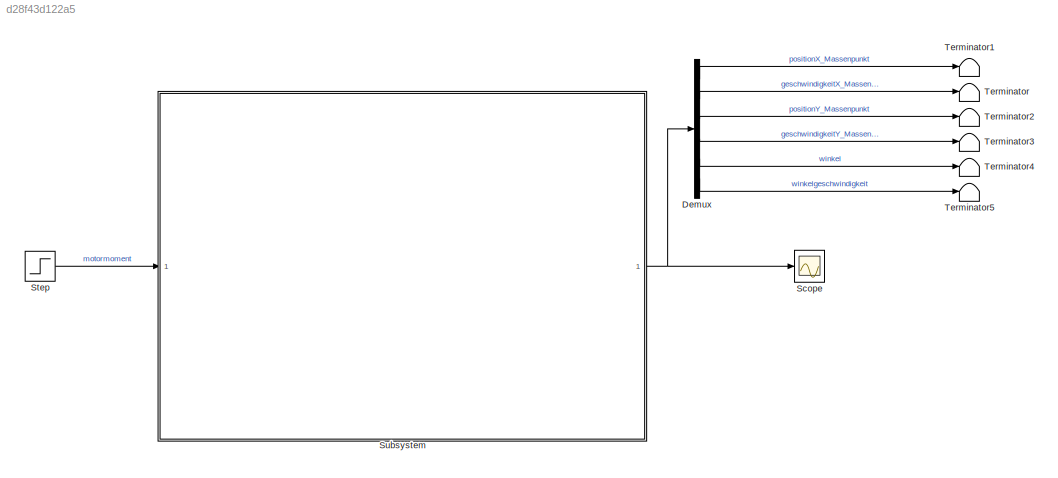
MODEL slx_d28f43d122a5
KIND model
CONFIG AbsTol = auto
CONFIG EnableMultiTasking = off
CONFIG FixedStep = auto
CONFIG MaxStep = auto
CONFIG MinStep = auto
CONFIG RelTol = 1e-3
CONFIG SampleTimeConstraint = Unconstrained
CONFIG SolverName = VariableStepAuto
CONFIG StartTime = 0.0
CONFIG StopTime = 9
BLOCK [Demux] Demux
  Outputs = 6
  Ports = [1, 6]
BLOCK [Scope] Scope
  Floating = off
  NumInputPorts = 1
  Ports = [1]
  ScopeSpecificationString = Simulink.scopes.TimeScopeBlockCfg('CurrentConfiguration', extmgr.ConfigurationSet(extmgr.Configuration('Core','General UI',true),extmgr.Configuration('Core','Source UI',true),extmgr.Configuration('Sources','WiredSimulink',true,'DataLoggingVariableName','ScopeData13'),extmgr.Configuration('Visuals','Time Domain',true),extmgr.Configuration('Tools','Plot Navigation',true),extmgr.Configuration('Tools'...<+41ch>
BLOCK [Step] Step
  SampleTime = 0
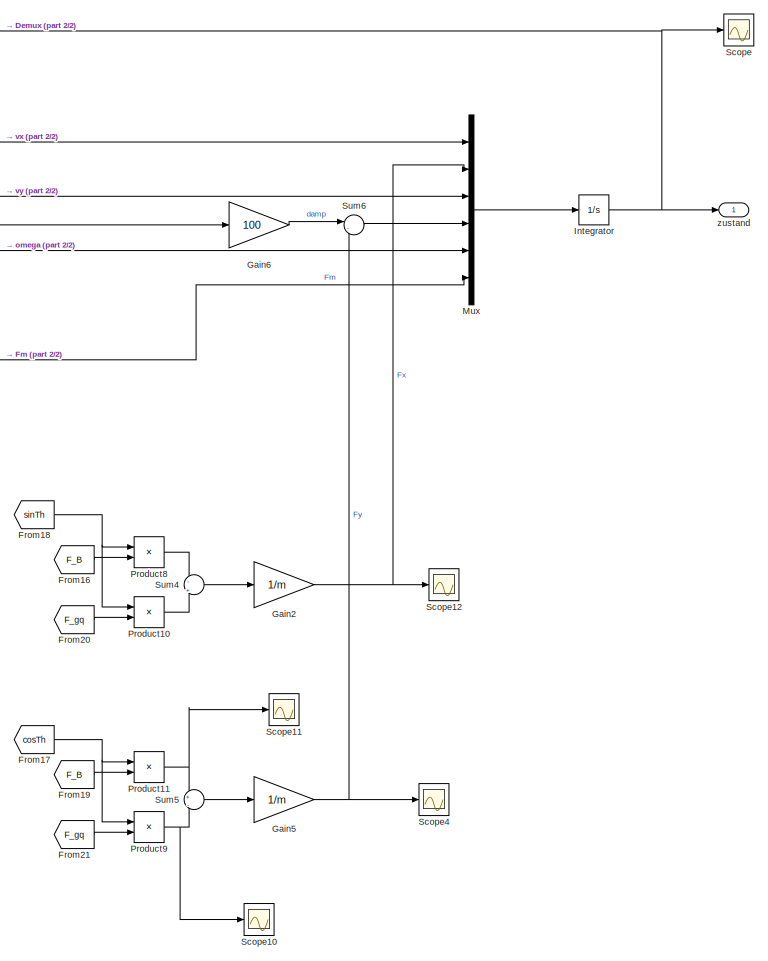
[diagram: Subsystem - part 1/2, right side, full height]
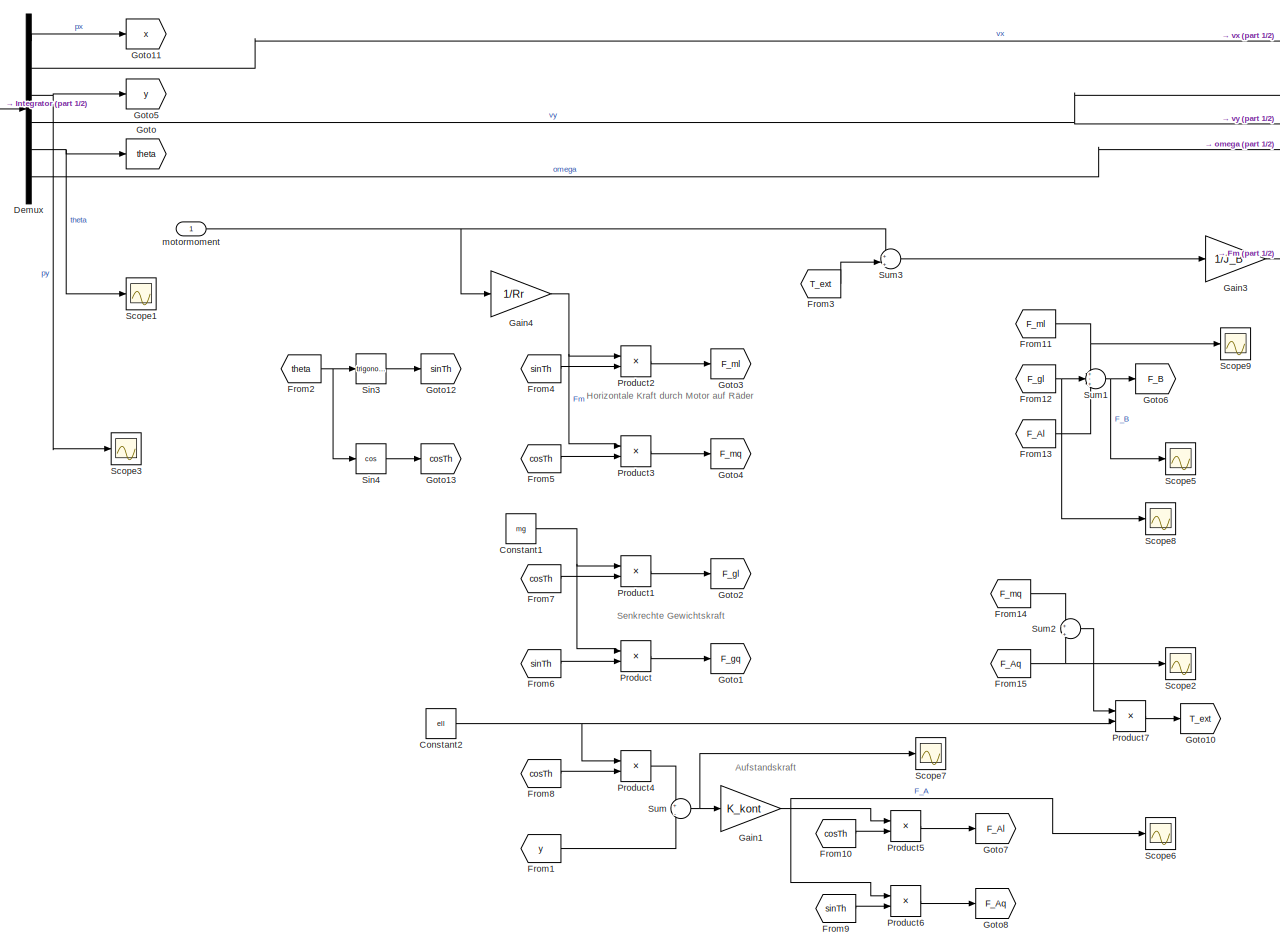
[diagram: Subsystem - part 2/2, center side, full height]
BLOCK [SubSystem] Subsystem
  Ports = [1, 1]
  RequestExecContextInheritance = off
BLOCK [Constant] Subsystem/Constant1
  Value = mg
BLOCK [Constant] Subsystem/Constant2
  Value = ell
BLOCK [Demux] Subsystem/Demux
  Outputs = 6
  Ports = [1, 6]
BLOCK [From] Subsystem/From1
  GotoTag = y
BLOCK [From] Subsystem/From10
  GotoTag = cosTh
BLOCK [From] Subsystem/From11
  GotoTag = F_ml
BLOCK [From] Subsystem/From12
  GotoTag = F_gl
BLOCK [From] Subsystem/From13
  GotoTag = F_Al
BLOCK [From] Subsystem/From14
  GotoTag = F_mq
BLOCK [From] Subsystem/From15
  GotoTag = F_Aq
BLOCK [From] Subsystem/From16
  GotoTag = F_B
BLOCK [From] Subsystem/From17
  GotoTag = cosTh
BLOCK [From] Subsystem/From18
  GotoTag = sinTh
BLOCK [From] Subsystem/From19
  GotoTag = F_B
BLOCK [From] Subsystem/From2
  GotoTag = theta
BLOCK [From] Subsystem/From20
  GotoTag = F_gq
BLOCK [From] Subsystem/From21
  GotoTag = F_gq
BLOCK [From] Subsystem/From3
  GotoTag = T_ext
BLOCK [From] Subsystem/From4
  GotoTag = sinTh
BLOCK [From] Subsystem/From5
  GotoTag = cosTh
BLOCK [From] Subsystem/From6
  GotoTag = sinTh
BLOCK [From] Subsystem/From7
  GotoTag = cosTh
BLOCK [From] Subsystem/From8
  GotoTag = cosTh
BLOCK [From] Subsystem/From9
  GotoTag = sinTh
BLOCK [Gain] Subsystem/Gain1
  Gain = K_kont
BLOCK [Gain] Subsystem/Gain2
  Gain = 1/m
BLOCK [Gain] Subsystem/Gain3
  Gain = 1/J_B
BLOCK [Gain] Subsystem/Gain4
  Gain = 1/Rr
BLOCK [Gain] Subsystem/Gain5
  Gain = 1/m
BLOCK [Gain] Subsystem/Gain6
  Gain = 100
BLOCK [Goto] Subsystem/Goto
  GotoTag = theta
BLOCK [Goto] Subsystem/Goto1
  GotoTag = F_gq
BLOCK [Goto] Subsystem/Goto10
  GotoTag = T_ext
BLOCK [Goto] Subsystem/Goto11
  GotoTag = x
BLOCK [Goto] Subsystem/Goto12
  GotoTag = sinTh
BLOCK [Goto] Subsystem/Goto13
  GotoTag = cosTh
BLOCK [Goto] Subsystem/Goto2
  GotoTag = F_gl
BLOCK [Goto] Subsystem/Goto3
  GotoTag = F_ml
BLOCK [Goto] Subsystem/Goto4
  GotoTag = F_mq
BLOCK [Goto] Subsystem/Goto5
  GotoTag = y
BLOCK [Goto] Subsystem/Goto6
  GotoTag = F_B
BLOCK [Goto] Subsystem/Goto7
  GotoTag = F_Al
BLOCK [Goto] Subsystem/Goto8
  GotoTag = F_Aq
BLOCK [Integrator] Subsystem/Integrator
  InitialCondition = [0 0 0.1 0 0.0000 0]
  Ports = [1, 1]
BLOCK [Mux] Subsystem/Mux
  DisplayOption = bar
  Inputs = 6
  Ports = [6, 1]
BLOCK [Product] Subsystem/Product
  Ports = [2, 1]
BLOCK [Product] Subsystem/Product1
  Ports = [2, 1]
BLOCK [Product] Subsystem/Product10
  Ports = [2, 1]
BLOCK [Product] Subsystem/Product11
  Ports = [2, 1]
BLOCK [Product] Subsystem/Product2
  Ports = [2, 1]
BLOCK [Product] Subsystem/Product3
  Ports = [2, 1]
BLOCK [Product] Subsystem/Product4
  Ports = [2, 1]
BLOCK [Product] Subsystem/Product5
  Ports = [2, 1]
BLOCK [Product] Subsystem/Product6
  Ports = [2, 1]
BLOCK [Product] Subsystem/Product7
  Ports = [2, 1]
BLOCK [Product] Subsystem/Product8
  Ports = [2, 1]
BLOCK [Product] Subsystem/Product9
  Ports = [2, 1]
BLOCK [Scope] Subsystem/Scope
  Floating = off
  NumInputPorts = 1
  Ports = [1]
  ScopeSpecificationString = Simulink.scopes.TimeScopeBlockCfg('CurrentConfiguration', extmgr.ConfigurationSet(extmgr.Configuration('Core','General UI',true),extmgr.Configuration('Core','Source UI',true),extmgr.Configuration('Sources','WiredSimulink',true),extmgr.Configuration('Visuals','Time Domain',true,'SerializedDisplays',{struct('MinYLimReal','-20.59622','MaxYLimReal','180.71354','YLabelReal','','MinYLimMag','0.00000','M...<+1491ch>
BLOCK [Scope] Subsystem/Scope1
  Floating = off
  NumInputPorts = 1
  Ports = [1]
  ScopeSpecificationString = Simulink.scopes.TimeScopeBlockCfg('CurrentConfiguration', extmgr.ConfigurationSet(extmgr.Configuration('Core','General UI',true),extmgr.Configuration('Core','Source UI',true),extmgr.Configuration('Sources','WiredSimulink',true,'DataLoggingVariableName','ScopeData1'),extmgr.Configuration('Visuals','Time Domain',true,'SerializedDisplays',{struct('MinYLimReal','-1.00000','MaxYLimReal','1.00000','YLab...<+1419ch>
BLOCK [Scope] Subsystem/Scope10
  Floating = off
  NumInputPorts = 1
  Ports = [1]
  ScopeSpecificationString = Simulink.scopes.TimeScopeBlockCfg('CurrentConfiguration', extmgr.ConfigurationSet(extmgr.Configuration('Core','General UI',true),extmgr.Configuration('Core','Source UI',true),extmgr.Configuration('Sources','WiredSimulink',true,'DataLoggingVariableName','ScopeData10'),extmgr.Configuration('Visuals','Time Domain',true,'SerializedDisplays',{struct('MinYLimReal','-0.01754','MaxYLimReal','0.15882','YLa...<+1442ch>
BLOCK [Scope] Subsystem/Scope11
  Floating = off
  NumInputPorts = 1
  Ports = [1]
  ScopeSpecificationString = Simulink.scopes.TimeScopeBlockCfg('CurrentConfiguration', extmgr.ConfigurationSet(extmgr.Configuration('Core','General UI',true),extmgr.Configuration('Core','Source UI',true),extmgr.Configuration('Sources','WiredSimulink',true,'DataLoggingVariableName','ScopeData11'),extmgr.Configuration('Visuals','Time Domain',true,'SerializedDisplays',{struct('MinYLimReal','-50677.92092','MaxYLimReal','27290.260...<+1472ch>
BLOCK [Scope] Subsystem/Scope12
  Floating = off
  NumInputPorts = 1
  Ports = [1]
  ScopeSpecificationString = Simulink.scopes.TimeScopeBlockCfg('CurrentConfiguration', extmgr.ConfigurationSet(extmgr.Configuration('Core','General UI',true),extmgr.Configuration('Core','Source UI',true),extmgr.Configuration('Sources','WiredSimulink',true,'DataLoggingVariableName','ScopeData12'),extmgr.Configuration('Visuals','Time Domain',true,'SerializedDisplays',{struct('MinYLimReal','-2.51517','MaxYLimReal','22.59944','YL...<+1439ch>
BLOCK [Scope] Subsystem/Scope2
  Floating = off
  NumInputPorts = 1
  Ports = [1]
  ScopeSpecificationString = Simulink.scopes.TimeScopeBlockCfg('CurrentConfiguration', extmgr.ConfigurationSet(extmgr.Configuration('Core','General UI',true),extmgr.Configuration('Core','Source UI',true),extmgr.Configuration('Sources','WiredSimulink',true,'DataLoggingVariableName','ScopeData2'),extmgr.Configuration('Visuals','Time Domain',true,'SerializedDisplays',{struct('MinYLimReal','-5.05092','MaxYLimReal','4.8676','YLabe...<+1439ch>
BLOCK [Scope] Subsystem/Scope3
  Floating = off
  NumInputPorts = 1
  Ports = [1]
  ScopeSpecificationString = Simulink.scopes.TimeScopeBlockCfg('CurrentConfiguration', extmgr.ConfigurationSet(extmgr.Configuration('Core','General UI',true),extmgr.Configuration('Core','Source UI',true),extmgr.Configuration('Sources','WiredSimulink',true,'DataLoggingVariableName','ScopeData3'),extmgr.Configuration('Visuals','Time Domain',true,'SerializedDisplays',{struct('MinYLimReal','-0.01225','MaxYLimReal','0.11247','YLab...<+1435ch>
BLOCK [Scope] Subsystem/Scope4
  Floating = off
  NumInputPorts = 1
  Ports = [1]
  ScopeSpecificationString = Simulink.scopes.TimeScopeBlockCfg('CurrentConfiguration', extmgr.ConfigurationSet(extmgr.Configuration('Core','General UI',true),extmgr.Configuration('Core','Source UI',true),extmgr.Configuration('Sources','WiredSimulink',true,'DataLoggingVariableName','ScopeData4'),extmgr.Configuration('Visuals','Time Domain',true,'SerializedDisplays',{struct('MinYLimReal','-18.27933','MaxYLimReal','11.84533','YL...<+1441ch>
BLOCK [Scope] Subsystem/Scope5
  Floating = off
  NumInputPorts = 1
  Ports = [1]
  ScopeSpecificationString = Simulink.scopes.TimeScopeBlockCfg('CurrentConfiguration', extmgr.ConfigurationSet(extmgr.Configuration('Core','General UI',true),extmgr.Configuration('Core','Source UI',true),extmgr.Configuration('Sources','WiredSimulink',true,'DataLoggingVariableName','ScopeData5'),extmgr.Configuration('Visuals','Time Domain',true,'SerializedDisplays',{struct('MinYLimReal','-1.39074','MaxYLimReal','1.1365','YLabe...<+1433ch>
BLOCK [Scope] Subsystem/Scope6
  Floating = off
  NumInputPorts = 1
  Ports = [1]
  ScopeSpecificationString = Simulink.scopes.TimeScopeBlockCfg('CurrentConfiguration', extmgr.ConfigurationSet(extmgr.Configuration('Core','General UI',true),extmgr.Configuration('Core','Source UI',true),extmgr.Configuration('Sources','WiredSimulink',true,'DataLoggingVariableName','ScopeData6'),extmgr.Configuration('Visuals','Time Domain',true,'SerializedDisplays',{struct('MinYLimReal','-5.10284','MaxYLimReal','4.92305','YLab...<+1436ch>
BLOCK [Scope] Subsystem/Scope7
  Floating = off
  NumInputPorts = 1
  Ports = [1]
  ScopeSpecificationString = Simulink.scopes.TimeScopeBlockCfg('CurrentConfiguration', extmgr.ConfigurationSet(extmgr.Configuration('Core','General UI',true),extmgr.Configuration('Core','Source UI',true),extmgr.Configuration('Sources','WiredSimulink',true,'DataLoggingVariableName','ScopeData7'),extmgr.Configuration('Visuals','Time Domain',true,'SerializedDisplays',{struct('MinYLimReal','-0.000005','MaxYLimReal','0.000005','YL...<+1443ch>
BLOCK [Scope] Subsystem/Scope8
  Floating = off
  NumInputPorts = 1
  Ports = [1]
  ScopeSpecificationString = Simulink.scopes.TimeScopeBlockCfg('CurrentConfiguration', extmgr.ConfigurationSet(extmgr.Configuration('Core','General UI',true),extmgr.Configuration('Core','Source UI',true),extmgr.Configuration('Sources','WiredSimulink',true,'DataLoggingVariableName','ScopeData8'),extmgr.Configuration('Visuals','Time Domain',true,'SerializedDisplays',{struct('MinYLimReal','0.9885','MaxYLimReal','1.00128','YLabel...<+1435ch>
BLOCK [Scope] Subsystem/Scope9
  Floating = off
  NumInputPorts = 1
  Ports = [1]
  ScopeSpecificationString = Simulink.scopes.TimeScopeBlockCfg('CurrentConfiguration', extmgr.ConfigurationSet(extmgr.Configuration('Core','General UI',true),extmgr.Configuration('Core','Source UI',true),extmgr.Configuration('Sources','WiredSimulink',true,'DataLoggingVariableName','ScopeData9'),extmgr.Configuration('Visuals','Time Domain',true,'SerializedDisplays',{struct('MinYLimReal','-1.00000','MaxYLimReal','1.00000','YLab...<+1440ch>
BLOCK [Trigonometry] Subsystem/Sin3
  Ports = [1, 1]
BLOCK [Trigonometry] Subsystem/Sin4
  Operator = cos
  Ports = [1, 1]
BLOCK [Sum] Subsystem/Sum
  Inputs = +|-
  Ports = [2, 1]
BLOCK [Sum] Subsystem/Sum1
  Inputs = +-+
  Ports = [3, 1]
BLOCK [Sum] Subsystem/Sum2
  Inputs = +|+
  Ports = [2, 1]
BLOCK [Sum] Subsystem/Sum3
  Inputs = +|+
  Ports = [2, 1]
BLOCK [Sum] Subsystem/Sum4
  Inputs = -|+
  Ports = [2, 1]
BLOCK [Sum] Subsystem/Sum5
  Inputs = +|-
  Ports = [2, 1]
BLOCK [Sum] Subsystem/Sum6
  Inputs = |-+
  Ports = [2, 1]
BLOCK [Inport] Subsystem/motormoment
BLOCK [Outport] Subsystem/zustand
BLOCK [Terminator] Terminator
BLOCK [Terminator] Terminator1
BLOCK [Terminator] Terminator2
BLOCK [Terminator] Terminator3
BLOCK [Terminator] Terminator4
BLOCK [Terminator] Terminator5
ANNOTATION Subsystem: Aufstandskraft
ANNOTATION Subsystem: Horizontale Kraft durch Motor auf Räder
ANNOTATION Subsystem: Senkrechte Gewichtskraft
LINE Demux:1 -> Terminator1:1
LINE Demux:2 -> Terminator:1
LINE Demux:3 -> Terminator2:1
LINE Demux:4 -> Terminator3:1
LINE Demux:5 -> Terminator4:1
LINE Demux:6 -> Terminator5:1
LINE Step:1 -> Subsystem:1
NET Subsystem/Constant1:1 -> Subsystem/Product1:1, Subsystem/Product:1
NET Subsystem/Constant2:1 -> Subsystem/Product4:1, Subsystem/Product7:2
LINE Subsystem/Demux:1 -> Subsystem/Goto11:1
LINE Subsystem/Demux:2 -> Subsystem/Mux:1
NET Subsystem/Demux:3 -> Subsystem/Goto5:1, Subsystem/Scope3:1
NET Subsystem/Demux:4 -> Subsystem/Gain6:1, Subsystem/Mux:3
NET Subsystem/Demux:5 -> Subsystem/Goto:1, Subsystem/Scope1:1
LINE Subsystem/Demux:6 -> Subsystem/Mux:5
LINE Subsystem/From10:1 -> Subsystem/Product5:2
NET Subsystem/From11:1 -> Subsystem/Scope9:1, Subsystem/Sum1:1
NET Subsystem/From12:1 -> Subsystem/Scope8:1, Subsystem/Sum1:2
LINE Subsystem/From13:1 -> Subsystem/Sum1:3
LINE Subsystem/From14:1 -> Subsystem/Sum2:1
NET Subsystem/From15:1 -> Subsystem/Scope2:1, Subsystem/Sum2:2
LINE Subsystem/From16:1 -> Subsystem/Product8:2
NET Subsystem/From17:1 -> Subsystem/Product11:1, Subsystem/Product9:1
NET Subsystem/From18:1 -> Subsystem/Product10:1, Subsystem/Product8:1
LINE Subsystem/From19:1 -> Subsystem/Product11:2
LINE Subsystem/From1:1 -> Subsystem/Sum:2
LINE Subsystem/From20:1 -> Subsystem/Product10:2
LINE Subsystem/From21:1 -> Subsystem/Product9:2
NET Subsystem/From2:1 -> Subsystem/Sin3:1, Subsystem/Sin4:1
LINE Subsystem/From3:1 -> Subsystem/Sum3:2
LINE Subsystem/From4:1 -> Subsystem/Product2:2
LINE Subsystem/From5:1 -> Subsystem/Product3:2
LINE Subsystem/From6:1 -> Subsystem/Product:2
LINE Subsystem/From7:1 -> Subsystem/Product1:2
LINE Subsystem/From8:1 -> Subsystem/Product4:2
LINE Subsystem/From9:1 -> Subsystem/Product6:2
NET Subsystem/Gain1:1 -> Subsystem/Product5:1, Subsystem/Product6:1, Subsystem/Scope6:1
NET Subsystem/Gain2:1 -> Subsystem/Mux:2, Subsystem/Scope12:1
LINE Subsystem/Gain3:1 -> Subsystem/Mux:6
NET Subsystem/Gain4:1 -> Subsystem/Product2:1, Subsystem/Product3:1
NET Subsystem/Gain5:1 -> Subsystem/Scope4:1, Subsystem/Sum6:2
LINE Subsystem/Gain6:1 -> Subsystem/Sum6:1
NET Subsystem/Integrator:1 -> Subsystem/Demux:1, Subsystem/Scope:1, Subsystem/zustand:1
LINE Subsystem/Mux:1 -> Subsystem/Integrator:1
LINE Subsystem/Product10:1 -> Subsystem/Sum4:2
NET Subsystem/Product11:1 -> Subsystem/Scope11:1, Subsystem/Sum5:1
LINE Subsystem/Product1:1 -> Subsystem/Goto2:1
LINE Subsystem/Product2:1 -> Subsystem/Goto3:1
LINE Subsystem/Product3:1 -> Subsystem/Goto4:1
LINE Subsystem/Product4:1 -> Subsystem/Sum:1
LINE Subsystem/Product5:1 -> Subsystem/Goto7:1
LINE Subsystem/Product6:1 -> Subsystem/Goto8:1
LINE Subsystem/Product7:1 -> Subsystem/Goto10:1
LINE Subsystem/Product8:1 -> Subsystem/Sum4:1
NET Subsystem/Product9:1 -> Subsystem/Scope10:1, Subsystem/Sum5:2
LINE Subsystem/Product:1 -> Subsystem/Goto1:1
LINE Subsystem/Sin3:1 -> Subsystem/Goto12:1
LINE Subsystem/Sin4:1 -> Subsystem/Goto13:1
NET Subsystem/Sum1:1 -> Subsystem/Goto6:1, Subsystem/Scope5:1
LINE Subsystem/Sum2:1 -> Subsystem/Product7:1
LINE Subsystem/Sum3:1 -> Subsystem/Gain3:1
LINE Subsystem/Sum4:1 -> Subsystem/Gain2:1
LINE Subsystem/Sum5:1 -> Subsystem/Gain5:1
LINE Subsystem/Sum6:1 -> Subsystem/Mux:4
NET Subsystem/Sum:1 -> Subsystem/Gain1:1, Subsystem/Scope7:1
NET Subsystem/motormoment:1 -> Subsystem/Gain4:1, Subsystem/Sum3:1
NET Subsystem:1 -> Demux:1, Scope:1
note: NET lines group one-source signal fan-out (src -> all destinations, sorted); 1:1 wires keep LINE
